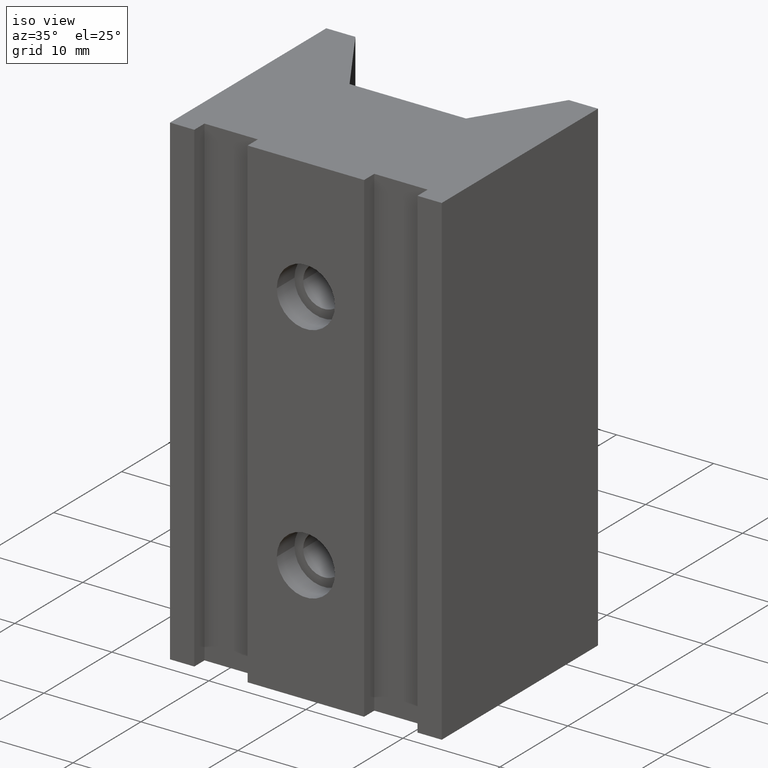
[diagram: clean part render]
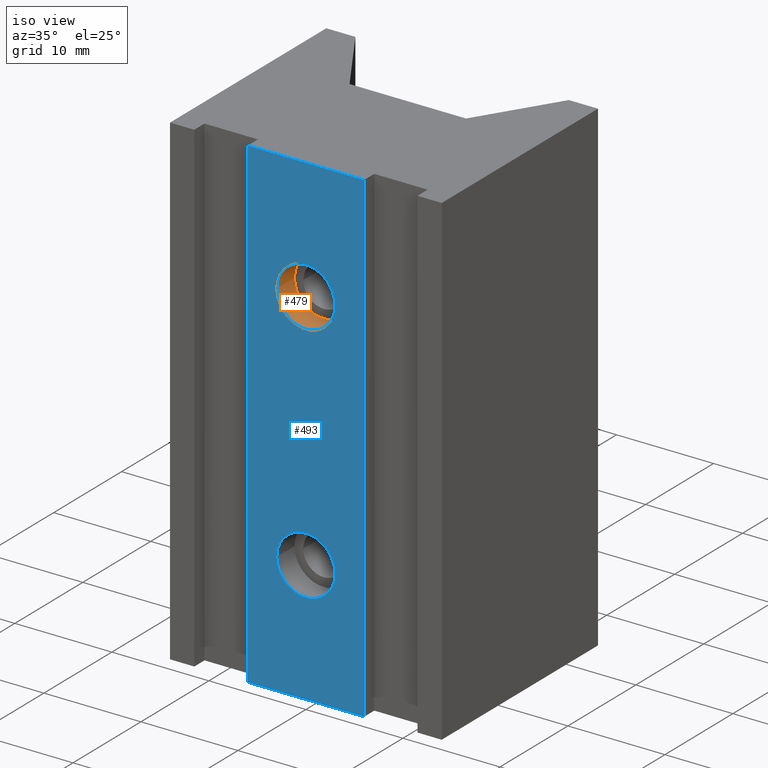
[diagram: same view with the hole feature highlighted: cylindrical wall and planar end face, labeled with their STEP entity ids]
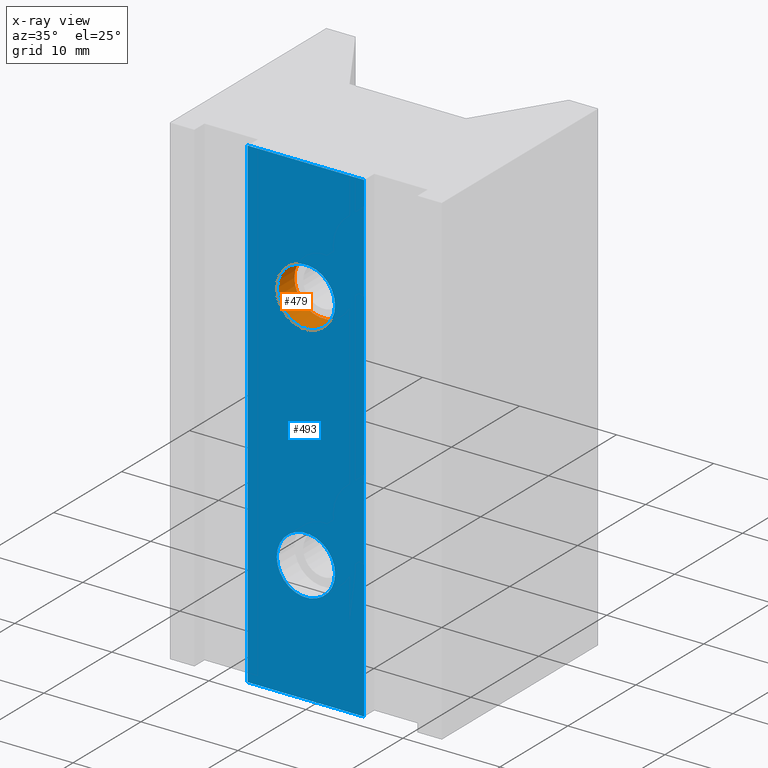
[diagram: x-ray of the same camera — body ghosted, the hole faces saturated]
A machine part, iso view. The highlighted faces form one hole feature of diameter 6 mm: the cylindrical wall (entity #479, orange) and its adjacent planar end face (entity #493, blue) — they share a circular edge in the B-rep.
The next image is the same camera in x-ray (body ghosted, the hole faces saturated) — the bore reads through the body.
Wall:
#47=FACE_OUTER_BOUND('',#76,.T.);
#76=EDGE_LOOP('',(#345,#346,#347,#348));
#110=LINE('',#718,#164);
#164=VECTOR('',#585,3.);
#220=CIRCLE('',#534,3.);
#221=CIRCLE('',#535,3.);
#232=VERTEX_POINT('',#715);
#233=VERTEX_POINT('',#717);
#277=EDGE_CURVE('',#232,#232,#220,.T.);
#278=EDGE_CURVE('',#232,#233,#110,.T.);
#279=EDGE_CURVE('',#233,#233,#221,.T.);
#345=ORIENTED_EDGE('',*,*,#277,.F.);
#346=ORIENTED_EDGE('',*,*,#278,.T.);
#347=ORIENTED_EDGE('',*,*,#279,.F.);
#348=ORIENTED_EDGE('',*,*,#278,.F.);
#472=CYLINDRICAL_SURFACE('',#533,3.);
#479=ADVANCED_FACE('',(#47),#472,.F.);
#533=AXIS2_PLACEMENT_3D('',#714,#581,#582);
#534=AXIS2_PLACEMENT_3D('',#716,#583,#584);
#535=AXIS2_PLACEMENT_3D('',#719,#586,#587);
#581=DIRECTION('center_axis',(4.62592926927148E-16,-1.,0.));
#582=DIRECTION('ref_axis',(1.,4.62592926927148E-16,0.));
#583=DIRECTION('center_axis',(-4.62592926927148E-16,1.,0.));
#584=DIRECTION('ref_axis',(1.,4.62592926927148E-16,0.));
#585=DIRECTION('',(-4.62592926927148E-16,1.,0.));
#586=DIRECTION('center_axis',(4.62592926927148E-16,-1.,0.));
#587=DIRECTION('ref_axis',(1.,4.62592926927148E-16,0.));
#714=CARTESIAN_POINT('Origin',(-6.01370805005293E-16,1.3,12.5));
#715=CARTESIAN_POINT('',(-3.,-5.27355936696949E-15,12.5));
#716=CARTESIAN_POINT('Origin',(0.,-3.88578058618805E-15,12.5));
#717=CARTESIAN_POINT('',(-3.,2.6,12.5));
#718=CARTESIAN_POINT('',(-3.,1.29999999999999,12.5));
#719=CARTESIAN_POINT('Origin',(-1.20274161001059E-15,2.6,12.5));
End face:
#19=FACE_BOUND('',#94,.T.);
#20=FACE_BOUND('',#95,.T.);
#33=PLANE('',#556);
#61=FACE_OUTER_BOUND('',#93,.T.);
#93=EDGE_LOOP('',(#407,#408,#409,#410));
#94=EDGE_LOOP('',(#411));
#95=EDGE_LOOP('',(#412));
#121=LINE('',#760,#175);
#141=LINE('',#799,#195);
#142=LINE('',#802,#196);
#143=LINE('',#803,#197);
#175=VECTOR('',#628,10.);
#195=VECTOR('',#658,10.);
#196=VECTOR('',#661,10.);
#197=VECTOR('',#662,10.);
#217=CIRCLE('',#529,3.);
#220=CIRCLE('',#534,3.);
#229=VERTEX_POINT('',#706);
#232=VERTEX_POINT('',#715);
#247=VERTEX_POINT('',#757);
#248=VERTEX_POINT('',#759);
#262=VERTEX_POINT('',#797);
#263=VERTEX_POINT('',#801);
#273=EDGE_CURVE('',#229,#229,#217,.T.);
#277=EDGE_CURVE('',#232,#232,#220,.T.);
#297=EDGE_CURVE('',#247,#248,#121,.T.);
#317=EDGE_CURVE('',#247,#262,#141,.T.);
#318=EDGE_CURVE('',#263,#262,#142,.T.);
#319=EDGE_CURVE('',#248,#263,#143,.T.);
#407=ORIENTED_EDGE('',*,*,#317,.T.);
#408=ORIENTED_EDGE('',*,*,#318,.F.);
#409=ORIENTED_EDGE('',*,*,#319,.F.);
#410=ORIENTED_EDGE('',*,*,#297,.F.);
#411=ORIENTED_EDGE('',*,*,#273,.T.);
#412=ORIENTED_EDGE('',*,*,#277,.T.);
#493=ADVANCED_FACE('',(#61,#19,#20),#33,.T.);
#529=AXIS2_PLACEMENT_3D('',#707,#572,#573);
#534=AXIS2_PLACEMENT_3D('',#716,#583,#584);
#556=AXIS2_PLACEMENT_3D('',#800,#659,#660);
#572=DIRECTION('center_axis',(-4.62592926927148E-16,1.,0.));
#573=DIRECTION('ref_axis',(1.,4.62592926927148E-16,0.));
#583=DIRECTION('center_axis',(-4.62592926927148E-16,1.,0.));
#584=DIRECTION('ref_axis',(1.,4.62592926927148E-16,0.));
#628=DIRECTION('',(-1.,-4.62592926927148E-16,0.));
#658=DIRECTION('',(0.,0.,1.));
#659=DIRECTION('center_axis',(4.62592926927148E-16,-1.,0.));
#660=DIRECTION('ref_axis',(1.,4.62592926927148E-16,0.));
#661=DIRECTION('',(1.,4.62592926927148E-16,0.));
#662=DIRECTION('',(0.,0.,1.));
#706=CARTESIAN_POINT('',(-3.00000000000001,-5.27355936696949E-15,-12.5));
#707=CARTESIAN_POINT('Origin',(-7.7715611723761E-15,-3.88578058618805E-15,
-12.5));
#715=CARTESIAN_POINT('',(-3.,-5.27355936696949E-15,12.5));
#716=CARTESIAN_POINT('Origin',(0.,-3.88578058618805E-15,12.5));
#757=CARTESIAN_POINT('',(6.,0.,-25.));
#759=CARTESIAN_POINT('',(-6.,-4.44089209850063E-15,-25.));
#760=CARTESIAN_POINT('',(-6.,-6.66133814775094E-15,-25.));
#797=CARTESIAN_POINT('',(6.,0.,25.));
#799=CARTESIAN_POINT('',(6.,-1.11022302462516E-15,0.));
#800=CARTESIAN_POINT('Origin',(-6.,-6.66133814775094E-15,0.));
#801=CARTESIAN_POINT('',(-6.,-4.44089209850063E-15,25.));
#802=CARTESIAN_POINT('',(-6.,-6.66133814775094E-15,25.));
#803=CARTESIAN_POINT('',(-6.,-6.66133814775094E-15,0.));